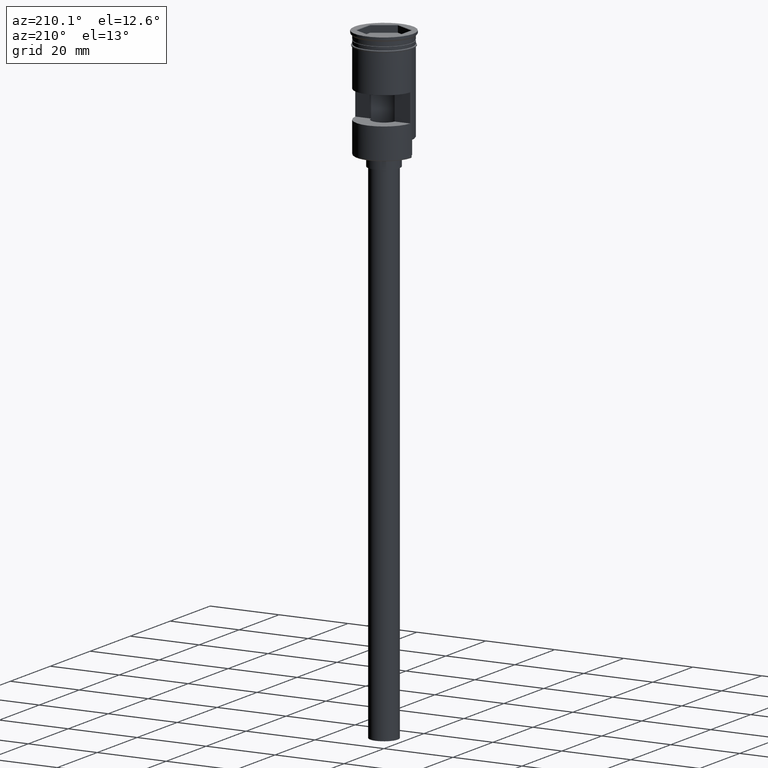
[diagram: clean part render]
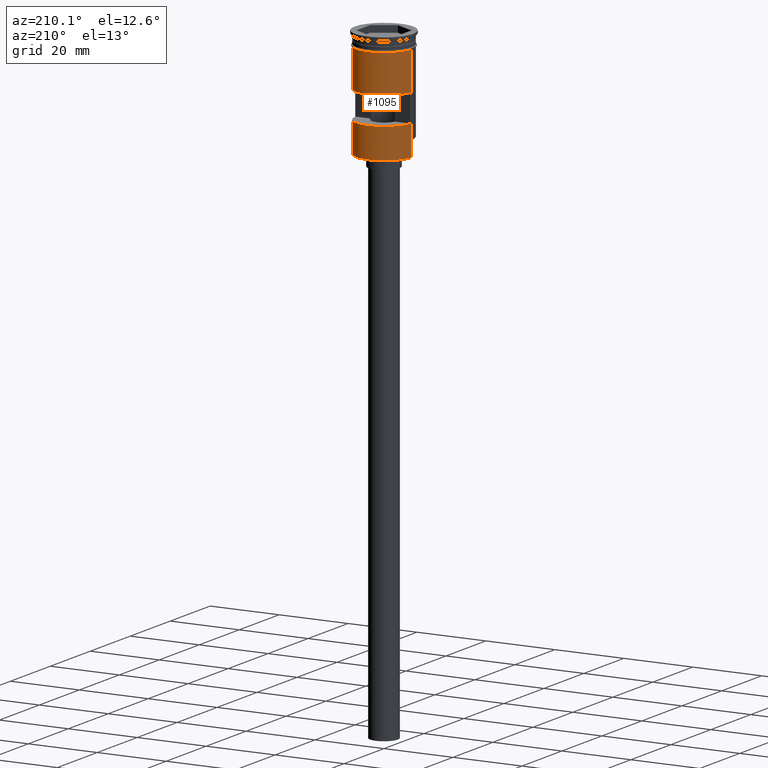
[diagram: same view with one face highlighted and labeled with its STEP entity id]
A machine part, auxiliary view. The second image highlights one B-rep face of the part: STEP entity #1095.
In plain terms, the highlighted cylindrical surface (edge-blend (fillet) strip) has radius 8 mm, axis along (-0, -0, 1).
Its self-contained STEP definition (entity closure, byte-faithful):
#34 = EDGE_CURVE ( 'NONE', #858, #1410, #1157, .T. ) ;
#37 = LINE ( 'NONE', #151, #1169 ) ;
#53 = VERTEX_POINT ( 'NONE', #1141 ) ;
#57 = DIRECTION ( 'NONE',  ( 0.000000000000000000, 0.000000000000000000, 1.000000000000000000 ) ) ;
#71 = VECTOR ( 'NONE', #1370, 1000.000000000000000 ) ;
#87 = EDGE_CURVE ( 'NONE', #53, #697, #122, .T. ) ;
#113 = LINE ( 'NONE', #1078, #822 ) ;
#114 = CARTESIAN_POINT ( 'NONE',  ( 0.000000000000000000, 0.000000000000000000, -31.79999999999997939 ) ) ;
#122 = CIRCLE ( 'NONE', #1547, 7.999999999999996447 ) ;
#127 = ORIENTED_EDGE ( 'NONE', *, *, #1550, .T. ) ;
#130 = EDGE_CURVE ( 'NONE', #583, #1476, #1266, .T. ) ;
#132 = DIRECTION ( 'NONE',  ( 0.000000000000000000, 0.000000000000000000, 1.000000000000000000 ) ) ;
#151 = CARTESIAN_POINT ( 'NONE',  ( -7.999999999999996447, 9.797174393178821713E-16, 0.000000000000000000 ) ) ;
#178 = DIRECTION ( 'NONE',  ( -0.000000000000000000, -0.000000000000000000, 1.000000000000000000 ) ) ;
#240 = AXIS2_PLACEMENT_3D ( 'NONE', #114, #132, #370 ) ;
#252 = EDGE_LOOP ( 'NONE', ( #722, #474, #963, #1432, #1297, #127 ) ) ;
#253 = CARTESIAN_POINT ( 'NONE',  ( -7.977468270071648604, 0.6000000000000000888, -23.00000000000000000 ) ) ;
#263 = AXIS2_PLACEMENT_3D ( 'NONE', #1218, #1234, #865 ) ;
#264 = EDGE_CURVE ( 'NONE', #1410, #554, #113, .T. ) ;
#271 = CARTESIAN_POINT ( 'NONE',  ( 0.000000000000000000, 0.000000000000000000, -3.999999999999997335 ) ) ;
#284 = ORIENTED_EDGE ( 'NONE', *, *, #603, .F. ) ;
#320 = DIRECTION ( 'NONE',  ( -0.000000000000000000, 2.344220913482172642E-16, -1.000000000000000000 ) ) ;
#355 = CARTESIAN_POINT ( 'NONE',  ( -7.999999999999992895, 0.000000000000000000, -31.79999999999997939 ) ) ;
#369 = DIRECTION ( 'NONE',  ( -0.000000000000000000, -0.000000000000000000, 1.000000000000000000 ) ) ;
#370 = DIRECTION ( 'NONE',  ( -1.000000000000000000, 0.000000000000000000, 0.000000000000000000 ) ) ;
#389 = LINE ( 'NONE', #874, #71 ) ;
#474 = ORIENTED_EDGE ( 'NONE', *, *, #1253, .T. ) ;
#554 = VERTEX_POINT ( 'NONE', #1565 ) ;
#558 = AXIS2_PLACEMENT_3D ( 'NONE', #1415, #320, #1292 ) ;
#583 = VERTEX_POINT ( 'NONE', #1094 ) ;
#603 = EDGE_CURVE ( 'NONE', #1476, #53, #389, .T. ) ;
#697 = VERTEX_POINT ( 'NONE', #253 ) ;
#703 = CARTESIAN_POINT ( 'NONE',  ( 7.999999999999996447, 9.797174393178821713E-16, -27.29999999999996518 ) ) ;
#722 = ORIENTED_EDGE ( 'NONE', *, *, #1308, .T. ) ;
#738 = FACE_BOUND ( 'NONE', #1329, .T. ) ;
#749 = EDGE_CURVE ( 'NONE', #554, #944, #1057, .T. ) ;
#754 = DIRECTION ( 'NONE',  ( -0.000000000000000000, -0.000000000000000000, 1.000000000000000000 ) ) ;
#758 = DIRECTION ( 'NONE',  ( -0.000000000000000000, -0.000000000000000000, 1.000000000000000000 ) ) ;
#771 = AXIS2_PLACEMENT_3D ( 'NONE', #271, #758, #1477 ) ;
#786 = ORIENTED_EDGE ( 'NONE', *, *, #87, .F. ) ;
#793 = VECTOR ( 'NONE', #754, 1000.000000000000000 ) ;
#822 = VECTOR ( 'NONE', #369, 1000.000000000000000 ) ;
#858 = VERTEX_POINT ( 'NONE', #1418 ) ;
#865 = DIRECTION ( 'NONE',  ( 1.000000000000000000, 0.000000000000000000, 0.000000000000000000 ) ) ;
#874 = CARTESIAN_POINT ( 'NONE',  ( 7.977468270071648604, 0.6000000000000000888, 0.000000000000000000 ) ) ;
#916 = LINE ( 'NONE', #1012, #1010 ) ;
#929 = CARTESIAN_POINT ( 'NONE',  ( -8.000000000000000000, 9.797174393178825657E-16, -3.999999999999997335 ) ) ;
#935 = DIRECTION ( 'NONE',  ( -1.000000000000000000, 0.000000000000000000, 0.000000000000000000 ) ) ;
#944 = VERTEX_POINT ( 'NONE', #929 ) ;
#948 = CARTESIAN_POINT ( 'NONE',  ( 0.000000000000000000, 0.000000000000000000, -23.00000000000000000 ) ) ;
#963 = ORIENTED_EDGE ( 'NONE', *, *, #749, .F. ) ;
#969 = CARTESIAN_POINT ( 'NONE',  ( 7.977468270071646828, 0.6000000000000000888, -15.00000000000000000 ) ) ;
#1010 = VECTOR ( 'NONE', #178, 1000.000000000000000 ) ;
#1012 = CARTESIAN_POINT ( 'NONE',  ( -7.999999999999992895, 0.000000000000000000, -32.00000000000000000 ) ) ;
#1057 = CIRCLE ( 'NONE', #771, 8.000000000000000000 ) ;
#1078 = CARTESIAN_POINT ( 'NONE',  ( 7.999999999999996447, 0.000000000000000000, 0.000000000000000000 ) ) ;
#1094 = CARTESIAN_POINT ( 'NONE',  ( -7.977468270071648604, 0.6000000000000000888, -15.00000000000000000 ) ) ;
#1095 = ADVANCED_FACE ( 'NONE', ( #738, #1474 ), #1354, .T. ) ;
#1114 = DIRECTION ( 'NONE',  ( -0.000000000000000000, -0.000000000000000000, 1.000000000000000000 ) ) ;
#1118 = CIRCLE ( 'NONE', #240, 7.999999999999996447 ) ;
#1121 = VECTOR ( 'NONE', #1114, 1000.000000000000000 ) ;
#1123 = CARTESIAN_POINT ( 'NONE',  ( -7.977468270071648604, 0.6000000000000000888, 0.000000000000000000 ) ) ;
#1131 = CARTESIAN_POINT ( 'NONE',  ( 7.999999999999992895, 9.797174393178817769E-16, -32.00000000000000000 ) ) ;
#1132 = CARTESIAN_POINT ( 'NONE',  ( -7.999999999999992895, 0.000000000000000000, -27.29999999999996518 ) ) ;
#1141 = CARTESIAN_POINT ( 'NONE',  ( 7.977468270071646828, 0.6000000000000000888, -23.00000000000000000 ) ) ;
#1143 = VERTEX_POINT ( 'NONE', #355 ) ;
#1157 = LINE ( 'NONE', #1131, #793 ) ;
#1169 = VECTOR ( 'NONE', #1537, 1000.000000000000000 ) ;
#1203 = VERTEX_POINT ( 'NONE', #1132 ) ;
#1218 = CARTESIAN_POINT ( 'NONE',  ( 0.000000000000000000, 0.000000000000000000, 0.000000000000000000 ) ) ;
#1234 = DIRECTION ( 'NONE',  ( -0.000000000000000000, -0.000000000000000000, 1.000000000000000000 ) ) ;
#1253 = EDGE_CURVE ( 'NONE', #1203, #944, #37, .T. ) ;
#1266 = CIRCLE ( 'NONE', #558, 7.999999999999996447 ) ;
#1292 = DIRECTION ( 'NONE',  ( 0.000000000000000000, -1.000000000000000000, -2.168404344971009854E-16 ) ) ;
#1297 = ORIENTED_EDGE ( 'NONE', *, *, #34, .F. ) ;
#1302 = ORIENTED_EDGE ( 'NONE', *, *, #130, .F. ) ;
#1308 = EDGE_CURVE ( 'NONE', #1143, #1203, #916, .T. ) ;
#1329 = EDGE_LOOP ( 'NONE', ( #284, #1302, #1359, #786 ) ) ;
#1351 = LINE ( 'NONE', #1123, #1121 ) ;
#1354 = CYLINDRICAL_SURFACE ( 'NONE', #263, 7.999999999999996447 ) ;
#1359 = ORIENTED_EDGE ( 'NONE', *, *, #1576, .F. ) ;
#1370 = DIRECTION ( 'NONE',  ( 0.000000000000000000, 0.000000000000000000, -1.000000000000000000 ) ) ;
#1410 = VERTEX_POINT ( 'NONE', #703 ) ;
#1415 = CARTESIAN_POINT ( 'NONE',  ( 0.000000000000000000, 0.000000000000000000, -15.00000000000000000 ) ) ;
#1418 = CARTESIAN_POINT ( 'NONE',  ( 7.999999999999992895, 9.797174393178817769E-16, -31.79999999999997939 ) ) ;
#1432 = ORIENTED_EDGE ( 'NONE', *, *, #264, .F. ) ;
#1474 = FACE_OUTER_BOUND ( 'NONE', #252, .T. ) ;
#1476 = VERTEX_POINT ( 'NONE', #969 ) ;
#1477 = DIRECTION ( 'NONE',  ( 1.000000000000000000, 0.000000000000000000, 0.000000000000000000 ) ) ;
#1537 = DIRECTION ( 'NONE',  ( -0.000000000000000000, -0.000000000000000000, 1.000000000000000000 ) ) ;
#1547 = AXIS2_PLACEMENT_3D ( 'NONE', #948, #57, #935 ) ;
#1550 = EDGE_CURVE ( 'NONE', #858, #1143, #1118, .T. ) ;
#1565 = CARTESIAN_POINT ( 'NONE',  ( 8.000000000000000000, 0.000000000000000000, -3.999999999999997335 ) ) ;
#1576 = EDGE_CURVE ( 'NONE', #697, #583, #1351, .T. ) ;